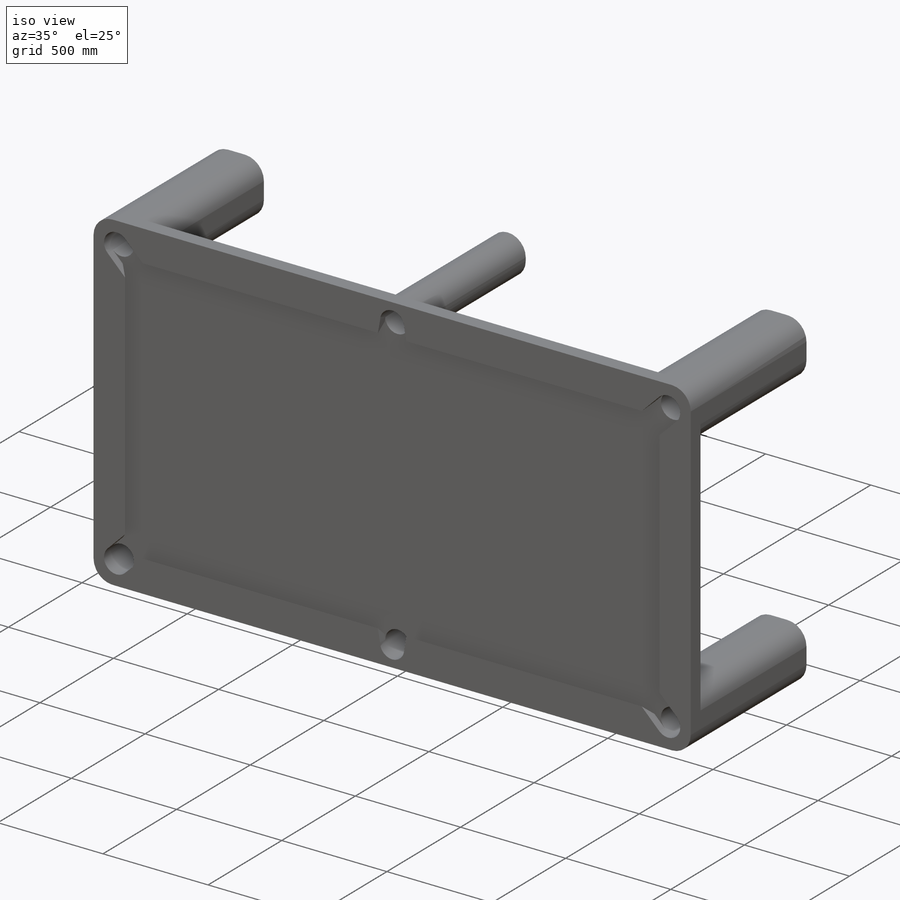
[diagram: iso view]
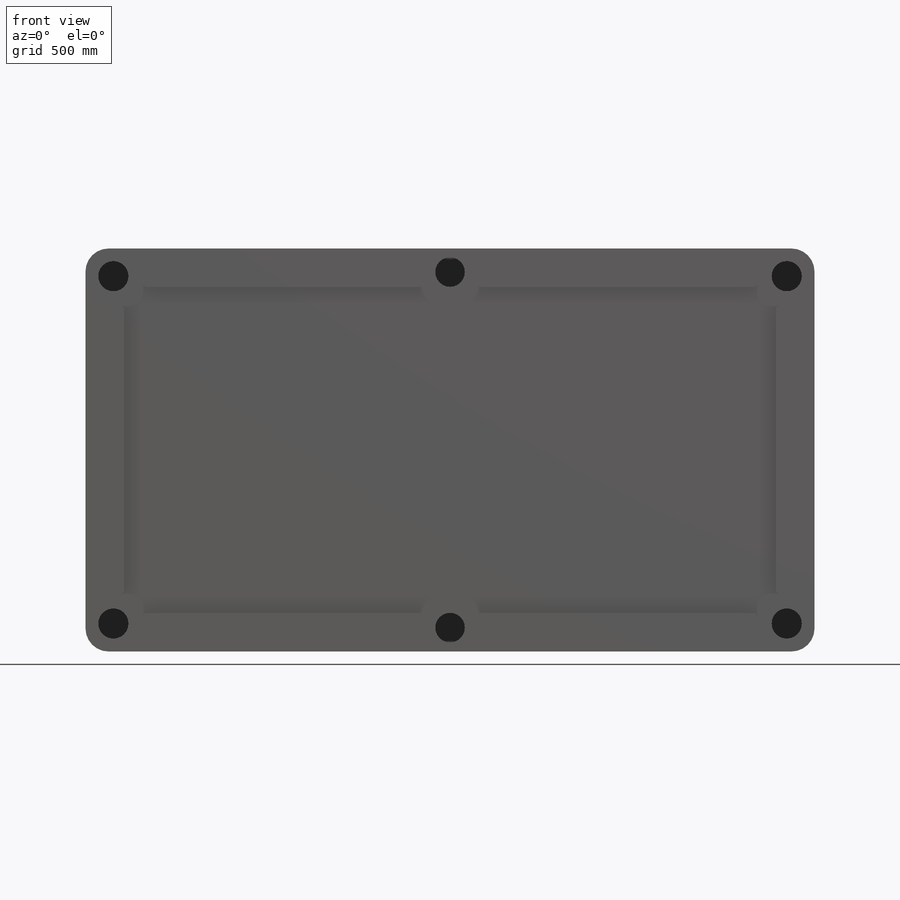
[diagram: front view]
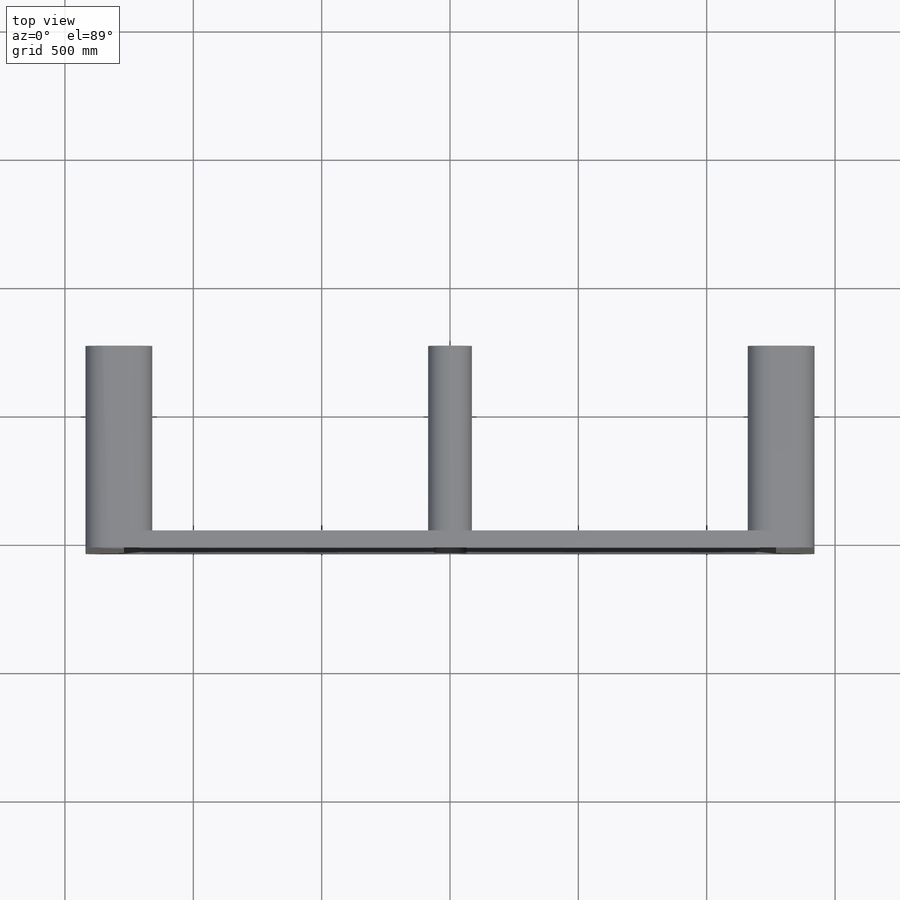
[diagram: top view]
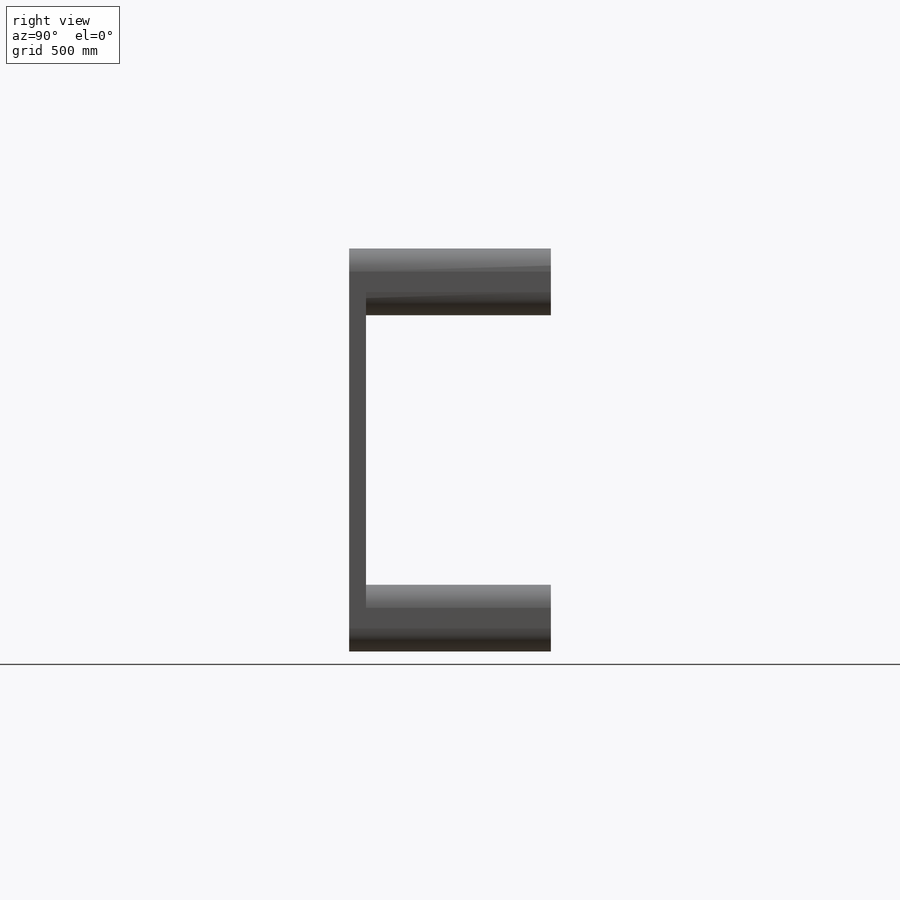
[diagram: right view]
SOLIDWORKS PART (.sldprt)
format: sldprt  version: not decoded by parser v0  size: 605,696 bytes
history: native  units: mm
features: sketch x9, extrude x4, cut_extrude x4, plane x3, fillet x2, material x1, chamfer x1 (+9 scaffold rows collapsed)
feature tree (33):
  scaffold x9  (default folders/planes/origin — collapsed)
  material  "Materiał <nieokreślony>"
  plane  "Płaszczyzna przednia"
  plane  "Płaszczyzna górna"
  plane  "Płaszczyzna prawa"
  sketch  "Szkic1"  dims[D1=2840.0mm D2=1570.0mm D3=2540.0mm D4=1270.0mm]
  extrude  "Dodanie-wyciągnięcie1"  Depth=36mm
  sketch  "Szkic2"
  chamfer  "Sfazowanie1"  Distance=36mm Angle=45deg
  sketch  "Szkic3"
  extrude  "Dodanie-wyciągnięcie3"  Depth=30mm
  sketch  "Szkic4"  dims[c1.D5=117.5mm c1.D1=58.75mm c1.D2=58.75mm c2.D1=58.75mm c2.D2=58.75mm c3.D1=1290.0mm c3.D2=2560.0mm c3.D3=58.75mm c4.D1=58.75mm c4.D2=58.75mm c4.D3=58.75mm c4.D4=58.75mm c4.D5=~128.50639mm c5.D5=45.0deg c5.D6=~113.319745mm c6.D6=45.0deg c7.D6=~113.319745mm c7.D7=~118.824481mm c8.D7=45.0deg c8.D8=~103.514282mm c8.D9=~62.898424mm c9.D9=45.0deg c9.D10=~88.951804mm c10.D9=~81.19795mm c11.D9=45.0deg c11.D10=~59.038503mm c12.D10=~72.674252deg c13.D10=~192.53505mm c14.D10=45.0deg c14.D5=~128.429284mm c15.D5=45.0deg c15.D6=~188.229377mm c16.D6=45.0deg c16.D7=~102.038361mm c17.D7=45.0deg c17.D8=~103.730395mm c18.D8=45.0deg c18.D11=~197.121827mm c19.D11=~28.248071deg c19.D12=~150.171754mm c20.D12=45.0deg c20.D11=~173.645933mm c21.D11=45.0deg]
  sketch  "Szkic5"  dims[D1=260.0mm D2=260.0mm D3=260.0mm D4=260.0mm D5=260.0mm D6=260.0mm D7=260.0mm D8=260.0mm]
  extrude  "Dodanie-wyciągnięcie4"  Depth=720mm
  cut_extrude  "Wytnij-wyciągnięcie16"  Depth=36mm
  sketch  "Szkic8"  dims[D1=117.5mm D2=117.5mm D3=117.5mm D4=117.5mm]
  cut_extrude  "Wytnij-wyciągnięcie17"  Depth=700mm
  fillet  "Zaokrąglenie1"  Radius=90mm
  sketch  "Szkic9"  dims[c1.D3=115.0mm c1.D4=115.0mm c1.D1=57.5mm c1.D2=57.5mm c1.D5=~259.623725mm c2.D5=45.0deg c2.D6=~198.602703mm c3.D6=45.0deg c3.D5=~91.923882mm c4.D5=80.0deg c4.D6=~87.382974mm c5.D6=80.0deg c5.D7=~79.527795mm c6.D7=~140.740036deg c7.D7=65.0mm c8.D7=60.0deg c8.D8=65.0mm c9.D8=80.0deg c9.D9=65.0mm c10.D9=135.0deg c11.D9=65.0mm c12.D9=100.0deg c12.D7=65.0mm c13.D7=80.0deg c14.D7=~2373.829906mm c15.D7=80.0deg]
  cut_extrude  "Wytnij-wyciągnięcie18"  Depth=36mm
  sketch  "Szkic10"  dims[D1=115.0mm D2=85.0mm]
  sketch  "Szkic11"  dims[D1=170.0mm D2=170.0mm]
  extrude  "Dodanie-wyciągnięcie5"  Depth=720mm
  fillet  "Zaokrąglenie2"  Radius=85mm
  cut_extrude  "Wytnij-wyciągnięcie19"  Depth=700mm
decode coverage: 18 of 20 modeling features carry decoded parameters
note: ~ marks probable driven/reference dimensions
note: suppression state not decoded; provenance and decode notes live in map.json
